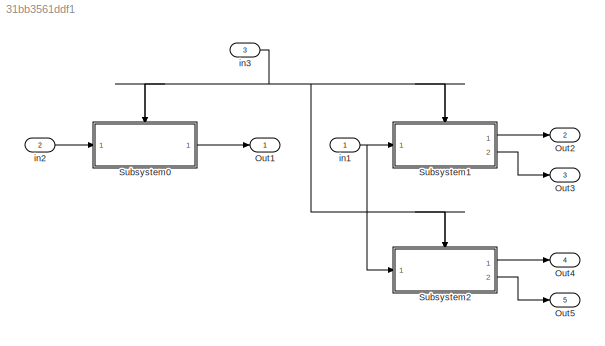
MODEL slx_31bb3561ddf1
KIND model
CONFIG AbsTol = auto
CONFIG EnableMultiTasking = on
CONFIG FixedStep = 1.000000
CONFIG MaxStep = auto
CONFIG MinStep = auto
CONFIG RelTol = 1e-3
CONFIG SampleTimeConstraint = Unconstrained
CONFIG Solver = FixedStepAuto
CONFIG SolverName = FixedStepAuto
CONFIG StartTime = 0.0
CONFIG StopTime = 10.0
BLOCK [Outport] Out1
  IconDisplay = Port number
BLOCK [Outport] Out2
  IconDisplay = Port number
  Port = 2
BLOCK [Outport] Out3
  IconDisplay = Port number
  Port = 3
BLOCK [Outport] Out4
  IconDisplay = Port number
  Port = 4
BLOCK [Outport] Out5
  IconDisplay = Port number
  Port = 5
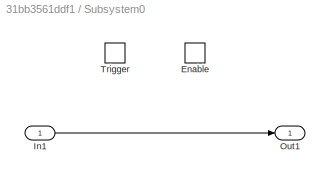
BLOCK [SubSystem] Subsystem0
  Ports = [1, 1, 1, 1]
  RequestExecContextInheritance = off
  TreatAsAtomicUnit = on
  Variant = off
BLOCK [EnablePort] Subsystem0/Enable
  Ports = []
BLOCK [Inport] Subsystem0/In1
  IconDisplay = Port number
BLOCK [Outport] Subsystem0/Out1
  IconDisplay = Port number
BLOCK [TriggerPort] Subsystem0/Trigger
  Ports = []
  StatesWhenEnabling = held
  TriggerType = falling
  VariantControl = (inherit)
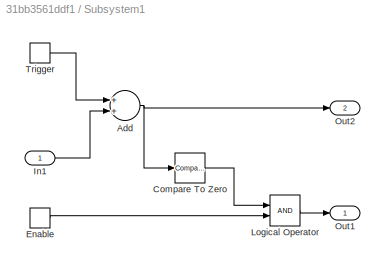
BLOCK [SubSystem] Subsystem1
  Ports = [1, 2, 1, 1]
  RequestExecContextInheritance = off
  TreatAsAtomicUnit = on
  Variant = off
BLOCK [Sum] Subsystem1/Add
  InputSameDT = off
  OutDataTypeStr = Inherit: Inherit via internal rule
  Ports = [2, 1]
  SaturateOnIntegerOverflow = off
BLOCK [Reference] Subsystem1/Compare To Zero  REF=simulink/Logic and Bit
Operations/Compare
To Zero
  Ports = [1, 1]
  SourceBlock = simulink/Logic and Bit\nOperations/Compare\nTo Zero
  SourceProductBaseCode = SL
  SourceProductName = Simulink
  SourceType = Compare To Zero
BLOCK [EnablePort] Subsystem1/Enable
  Ports = [0, 1]
  ShowOutputPort = on
BLOCK [Inport] Subsystem1/In1
  IconDisplay = Port number
BLOCK [Logic] Subsystem1/Logical Operator
  AllPortsSameDT = off
  OutDataTypeStr = boolean
  Ports = [2, 1]
BLOCK [Outport] Subsystem1/Out1
  IconDisplay = Port number
BLOCK [Outport] Subsystem1/Out2
  IconDisplay = Port number
  Port = 2
BLOCK [TriggerPort] Subsystem1/Trigger
  Ports = [0, 1]
  ShowOutputPort = on
  StatesWhenEnabling = held
  TriggerType = either
  VariantControl = (inherit)
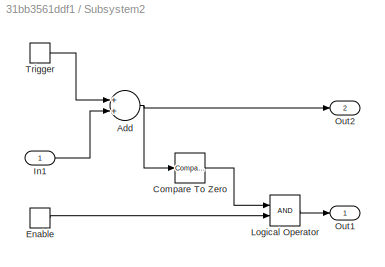
BLOCK [SubSystem] Subsystem2
  Ports = [1, 2, 1, 1]
  RequestExecContextInheritance = off
  TreatAsAtomicUnit = on
  Variant = off
BLOCK [Sum] Subsystem2/Add
  InputSameDT = off
  OutDataTypeStr = Inherit: Inherit via internal rule
  Ports = [2, 1]
  SaturateOnIntegerOverflow = off
BLOCK [Reference] Subsystem2/Compare To Zero  REF=simulink/Logic and Bit
Operations/Compare
To Zero
  Ports = [1, 1]
  SourceBlock = simulink/Logic and Bit\nOperations/Compare\nTo Zero
  SourceProductBaseCode = SL
  SourceProductName = Simulink
  SourceType = Compare To Zero
BLOCK [EnablePort] Subsystem2/Enable
  Ports = [0, 1]
  ShowOutputPort = on
  StatesWhenEnabling = reset
BLOCK [Inport] Subsystem2/In1
  IconDisplay = Port number
BLOCK [Logic] Subsystem2/Logical Operator
  AllPortsSameDT = off
  OutDataTypeStr = boolean
  Ports = [2, 1]
BLOCK [Outport] Subsystem2/Out1
  IconDisplay = Port number
BLOCK [Outport] Subsystem2/Out2
  IconDisplay = Port number
  Port = 2
BLOCK [TriggerPort] Subsystem2/Trigger
  Ports = [0, 1]
  ShowOutputPort = on
  StatesWhenEnabling = held
  TriggerType = either
  VariantControl = (inherit)
BLOCK [Inport] in1
  IconDisplay = Port number
BLOCK [Inport] in2
  IconDisplay = Port number
  Port = 2
BLOCK [Inport] in3
  IconDisplay = Port number
  OutDataTypeStr = boolean
  Port = 3
LINE Subsystem0/In1:1 -> Subsystem0/Out1:1
LINE Subsystem0:1 -> Out1:1
NET Subsystem1/Add:1 -> Subsystem1/Compare To Zero:1, Subsystem1/Out2:1
LINE Subsystem1/Compare To Zero:1 -> Subsystem1/Logical Operator:1
LINE Subsystem1/Enable:1 -> Subsystem1/Logical Operator:2
LINE Subsystem1/In1:1 -> Subsystem1/Add:2
LINE Subsystem1/Logical Operator:1 -> Subsystem1/Out1:1
LINE Subsystem1/Trigger:1 -> Subsystem1/Add:1
LINE Subsystem1:1 -> Out2:1
LINE Subsystem1:2 -> Out3:1
NET Subsystem2/Add:1 -> Subsystem2/Compare To Zero:1, Subsystem2/Out2:1
LINE Subsystem2/Compare To Zero:1 -> Subsystem2/Logical Operator:1
LINE Subsystem2/Enable:1 -> Subsystem2/Logical Operator:2
LINE Subsystem2/In1:1 -> Subsystem2/Add:2
LINE Subsystem2/Logical Operator:1 -> Subsystem2/Out1:1
LINE Subsystem2/Trigger:1 -> Subsystem2/Add:1
LINE Subsystem2:1 -> Out4:1
LINE Subsystem2:2 -> Out5:1
NET in1:1 -> Subsystem1:1, Subsystem2:1
LINE in2:1 -> Subsystem0:1
NET in3:1 -> Subsystem0:enable, Subsystem0:trigger, Subsystem1:enable, Subsystem1:trigger, Subsystem2:enable, Subsystem2:trigger
note: NET lines group one-source signal fan-out (src -> all destinations, sorted); 1:1 wires keep LINE
